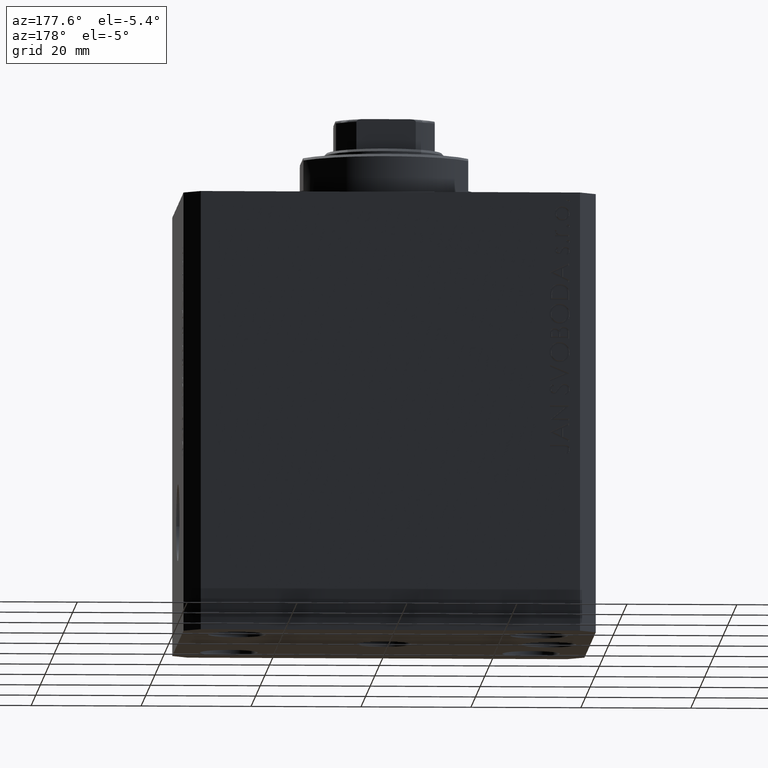
[diagram: clean part render]
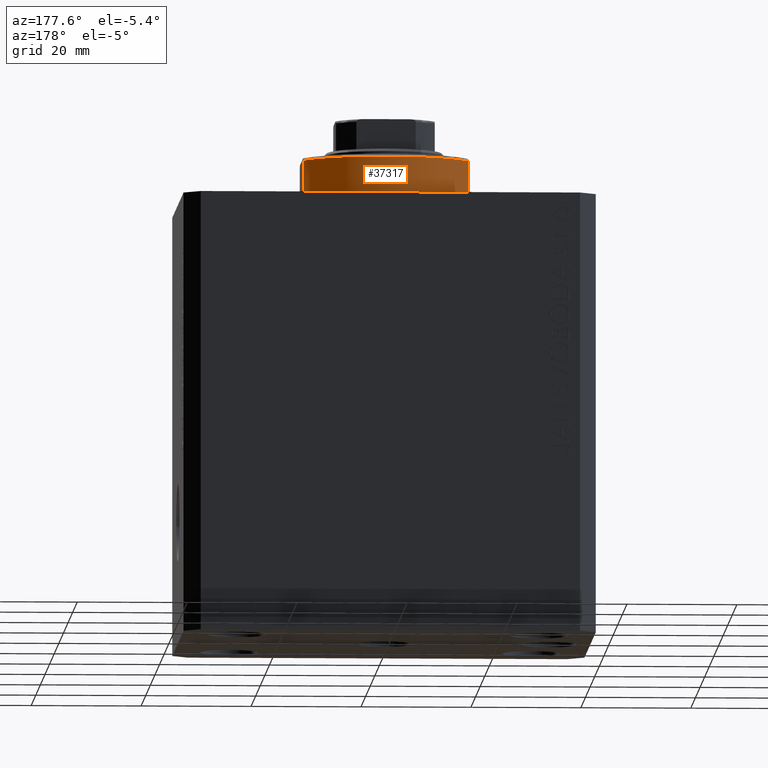
[diagram: same view with one face highlighted and labeled with its STEP entity id]
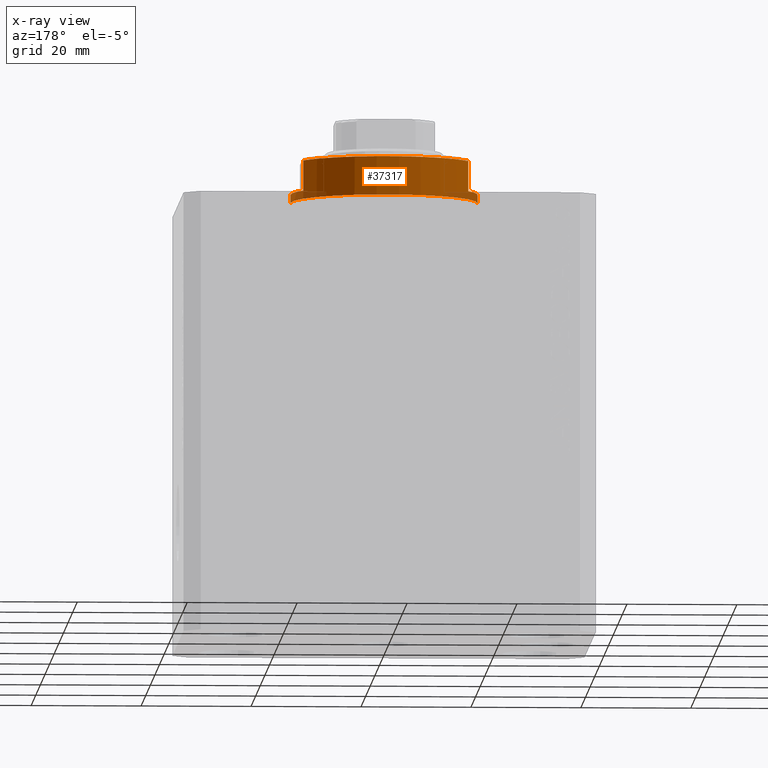
[diagram: x-ray of the same camera — body ghosted, the highlighted face saturated]
A machine part, auxiliary view. The second image highlights one B-rep face of the part: STEP entity #37317.
The next image is the same camera in x-ray: the body ghosted, the highlighted face saturated — about 7% of this face is hidden behind the body in this view.
In plain terms, the highlighted cylindrical surface (partial cylindrical patch) has radius 17 mm, axis along (0, 0, -1).
Its self-contained STEP definition (entity closure, byte-faithful):
#647 = CARTESIAN_POINT ( 'NONE',  ( 0.000000000000000000, 0.000000000000000000, -8.000000000000000000 ) ) ;
#2431 = CARTESIAN_POINT ( 'NONE',  ( 0.000000000000000000, 0.000000000000000000, -2.000000000000000000 ) ) ;
#3252 = CARTESIAN_POINT ( 'NONE',  ( -17.00000000000000000, 2.081899558550500280E-15, -0.5000000000000004441 ) ) ;
#3408 = VECTOR ( 'NONE', #37427, 1000.000000000000000 ) ;
#4210 = EDGE_CURVE ( 'NONE', #43802, #28589, #8689, .T. ) ;
#4455 = CARTESIAN_POINT ( 'NONE',  ( 0.000000000000000000, 0.000000000000000000, -2.000000000000000000 ) ) ;
#4493 = CARTESIAN_POINT ( 'NONE',  ( -15.00000000000000000, 8.000000000000001776, -7.500000000000007105 ) ) ;
#4888 = CIRCLE ( 'NONE', #17163, 17.00000000000000000 ) ;
#5324 = EDGE_CURVE ( 'NONE', #35278, #29529, #28372, .T. ) ;
#6262 = DIRECTION ( 'NONE',  ( -1.000000000000000000, 0.000000000000000000, 0.000000000000000000 ) ) ;
#7042 = ORIENTED_EDGE ( 'NONE', *, *, #20710, .F. ) ;
#8199 = CARTESIAN_POINT ( 'NONE',  ( 0.000000000000000000, 0.000000000000000000, -7.500000000000007105 ) ) ;
#8234 = CARTESIAN_POINT ( 'NONE',  ( 15.00000000000000000, 8.000000000000001776, -8.000000000000000000 ) ) ;
#8285 = ORIENTED_EDGE ( 'NONE', *, *, #5324, .T. ) ;
#8571 = EDGE_CURVE ( 'NONE', #12666, #33045, #30496, .T. ) ;
#8689 = LINE ( 'NONE', #8234, #29052 ) ;
#8866 = EDGE_CURVE ( 'NONE', #40076, #29529, #11417, .T. ) ;
#9289 = AXIS2_PLACEMENT_3D ( 'NONE', #8199, #28363, #28150 ) ;
#9305 = ORIENTED_EDGE ( 'NONE', *, *, #39879, .F. ) ;
#9440 = ORIENTED_EDGE ( 'NONE', *, *, #38987, .T. ) ;
#10262 = LINE ( 'NONE', #17737, #3408 ) ;
#10721 = DIRECTION ( 'NONE',  ( -0.000000000000000000, -0.000000000000000000, -1.000000000000000000 ) ) ;
#11121 = ORIENTED_EDGE ( 'NONE', *, *, #4210, .F. ) ;
#11417 = LINE ( 'NONE', #36296, #41463 ) ;
#11713 = FACE_OUTER_BOUND ( 'NONE', #32833, .T. ) ;
#12666 = VERTEX_POINT ( 'NONE', #4493 ) ;
#12747 = CARTESIAN_POINT ( 'NONE',  ( 17.00000000000000000, 0.000000000000000000, -0.5000000000000004441 ) ) ;
#14740 = VECTOR ( 'NONE', #36845, 1000.000000000000000 ) ;
#15256 = DIRECTION ( 'NONE',  ( -0.000000000000000000, -0.000000000000000000, 1.000000000000000000 ) ) ;
#15844 = CIRCLE ( 'NONE', #42542, 17.00000000000000000 ) ;
#16009 = ORIENTED_EDGE ( 'NONE', *, *, #8866, .F. ) ;
#17163 = AXIS2_PLACEMENT_3D ( 'NONE', #2431, #37040, #6262 ) ;
#17737 = CARTESIAN_POINT ( 'NONE',  ( -17.00000000000000000, 2.081899558550500280E-15, -8.000000000000000000 ) ) ;
#18542 = CARTESIAN_POINT ( 'NONE',  ( -17.00000000000000000, 2.081899558550500280E-15, -2.000000000000000000 ) ) ;
#20710 = EDGE_CURVE ( 'NONE', #39131, #33045, #4888, .T. ) ;
#22991 = CARTESIAN_POINT ( 'NONE',  ( 17.00000000000000000, 0.000000000000000000, -2.000000000000000000 ) ) ;
#23294 = AXIS2_PLACEMENT_3D ( 'NONE', #41033, #10721, #31084 ) ;
#23714 = CARTESIAN_POINT ( 'NONE',  ( -15.00000000000000000, 8.000000000000001776, -8.000000000000000000 ) ) ;
#28053 = CARTESIAN_POINT ( 'NONE',  ( 15.00000000000000000, 8.000000000000001776, -7.500000000000007105 ) ) ;
#28150 = DIRECTION ( 'NONE',  ( -1.000000000000000000, 0.000000000000000000, 0.000000000000000000 ) ) ;
#28363 = DIRECTION ( 'NONE',  ( 0.000000000000000000, 0.000000000000000000, 1.000000000000000000 ) ) ;
#28372 = CIRCLE ( 'NONE', #23294, 17.00000000000000000 ) ;
#28465 = DIRECTION ( 'NONE',  ( -0.000000000000000000, -0.000000000000000000, 1.000000000000000000 ) ) ;
#28589 = VERTEX_POINT ( 'NONE', #34938 ) ;
#28800 = CIRCLE ( 'NONE', #9289, 17.00000000000000000 ) ;
#28898 = DIRECTION ( 'NONE',  ( 0.000000000000000000, 0.000000000000000000, -1.000000000000000000 ) ) ;
#29052 = VECTOR ( 'NONE', #43296, 1000.000000000000000 ) ;
#29529 = VERTEX_POINT ( 'NONE', #12747 ) ;
#30117 = ORIENTED_EDGE ( 'NONE', *, *, #8571, .T. ) ;
#30496 = LINE ( 'NONE', #23714, #14740 ) ;
#31084 = DIRECTION ( 'NONE',  ( 1.000000000000000000, 0.000000000000000000, 0.000000000000000000 ) ) ;
#32616 = ORIENTED_EDGE ( 'NONE', *, *, #35322, .T. ) ;
#32833 = EDGE_LOOP ( 'NONE', ( #7042, #32616, #8285, #16009, #9305, #11121, #9440, #30117 ) ) ;
#33045 = VERTEX_POINT ( 'NONE', #34545 ) ;
#34545 = CARTESIAN_POINT ( 'NONE',  ( -14.99999999999999645, 8.000000000000003553, -2.000000000000000000 ) ) ;
#34938 = CARTESIAN_POINT ( 'NONE',  ( 14.99999999999999645, 8.000000000000003553, -2.000000000000000000 ) ) ;
#35024 = DIRECTION ( 'NONE',  ( 1.000000000000000000, 0.000000000000000000, 0.000000000000000000 ) ) ;
#35278 = VERTEX_POINT ( 'NONE', #3252 ) ;
#35322 = EDGE_CURVE ( 'NONE', #39131, #35278, #10262, .T. ) ;
#36296 = CARTESIAN_POINT ( 'NONE',  ( 17.00000000000000000, 0.000000000000000000, -8.000000000000000000 ) ) ;
#36845 = DIRECTION ( 'NONE',  ( -0.000000000000000000, -0.000000000000000000, 1.000000000000000000 ) ) ;
#37040 = DIRECTION ( 'NONE',  ( 0.000000000000000000, 0.000000000000000000, -1.000000000000000000 ) ) ;
#37317 = ADVANCED_FACE ( 'NONE', ( #11713 ), #42696, .T. ) ;
#37427 = DIRECTION ( 'NONE',  ( -0.000000000000000000, -0.000000000000000000, 1.000000000000000000 ) ) ;
#38912 = AXIS2_PLACEMENT_3D ( 'NONE', #647, #28465, #35024 ) ;
#38987 = EDGE_CURVE ( 'NONE', #43802, #12666, #28800, .T. ) ;
#39073 = DIRECTION ( 'NONE',  ( -1.000000000000000000, 0.000000000000000000, 0.000000000000000000 ) ) ;
#39131 = VERTEX_POINT ( 'NONE', #18542 ) ;
#39879 = EDGE_CURVE ( 'NONE', #28589, #40076, #15844, .T. ) ;
#40076 = VERTEX_POINT ( 'NONE', #22991 ) ;
#41033 = CARTESIAN_POINT ( 'NONE',  ( 0.000000000000000000, 0.000000000000000000, -0.5000000000000004441 ) ) ;
#41463 = VECTOR ( 'NONE', #15256, 1000.000000000000000 ) ;
#42542 = AXIS2_PLACEMENT_3D ( 'NONE', #4455, #28898, #39073 ) ;
#42696 = CYLINDRICAL_SURFACE ( 'NONE', #38912, 17.00000000000000000 ) ;
#43296 = DIRECTION ( 'NONE',  ( -0.000000000000000000, -0.000000000000000000, 1.000000000000000000 ) ) ;
#43802 = VERTEX_POINT ( 'NONE', #28053 ) ;